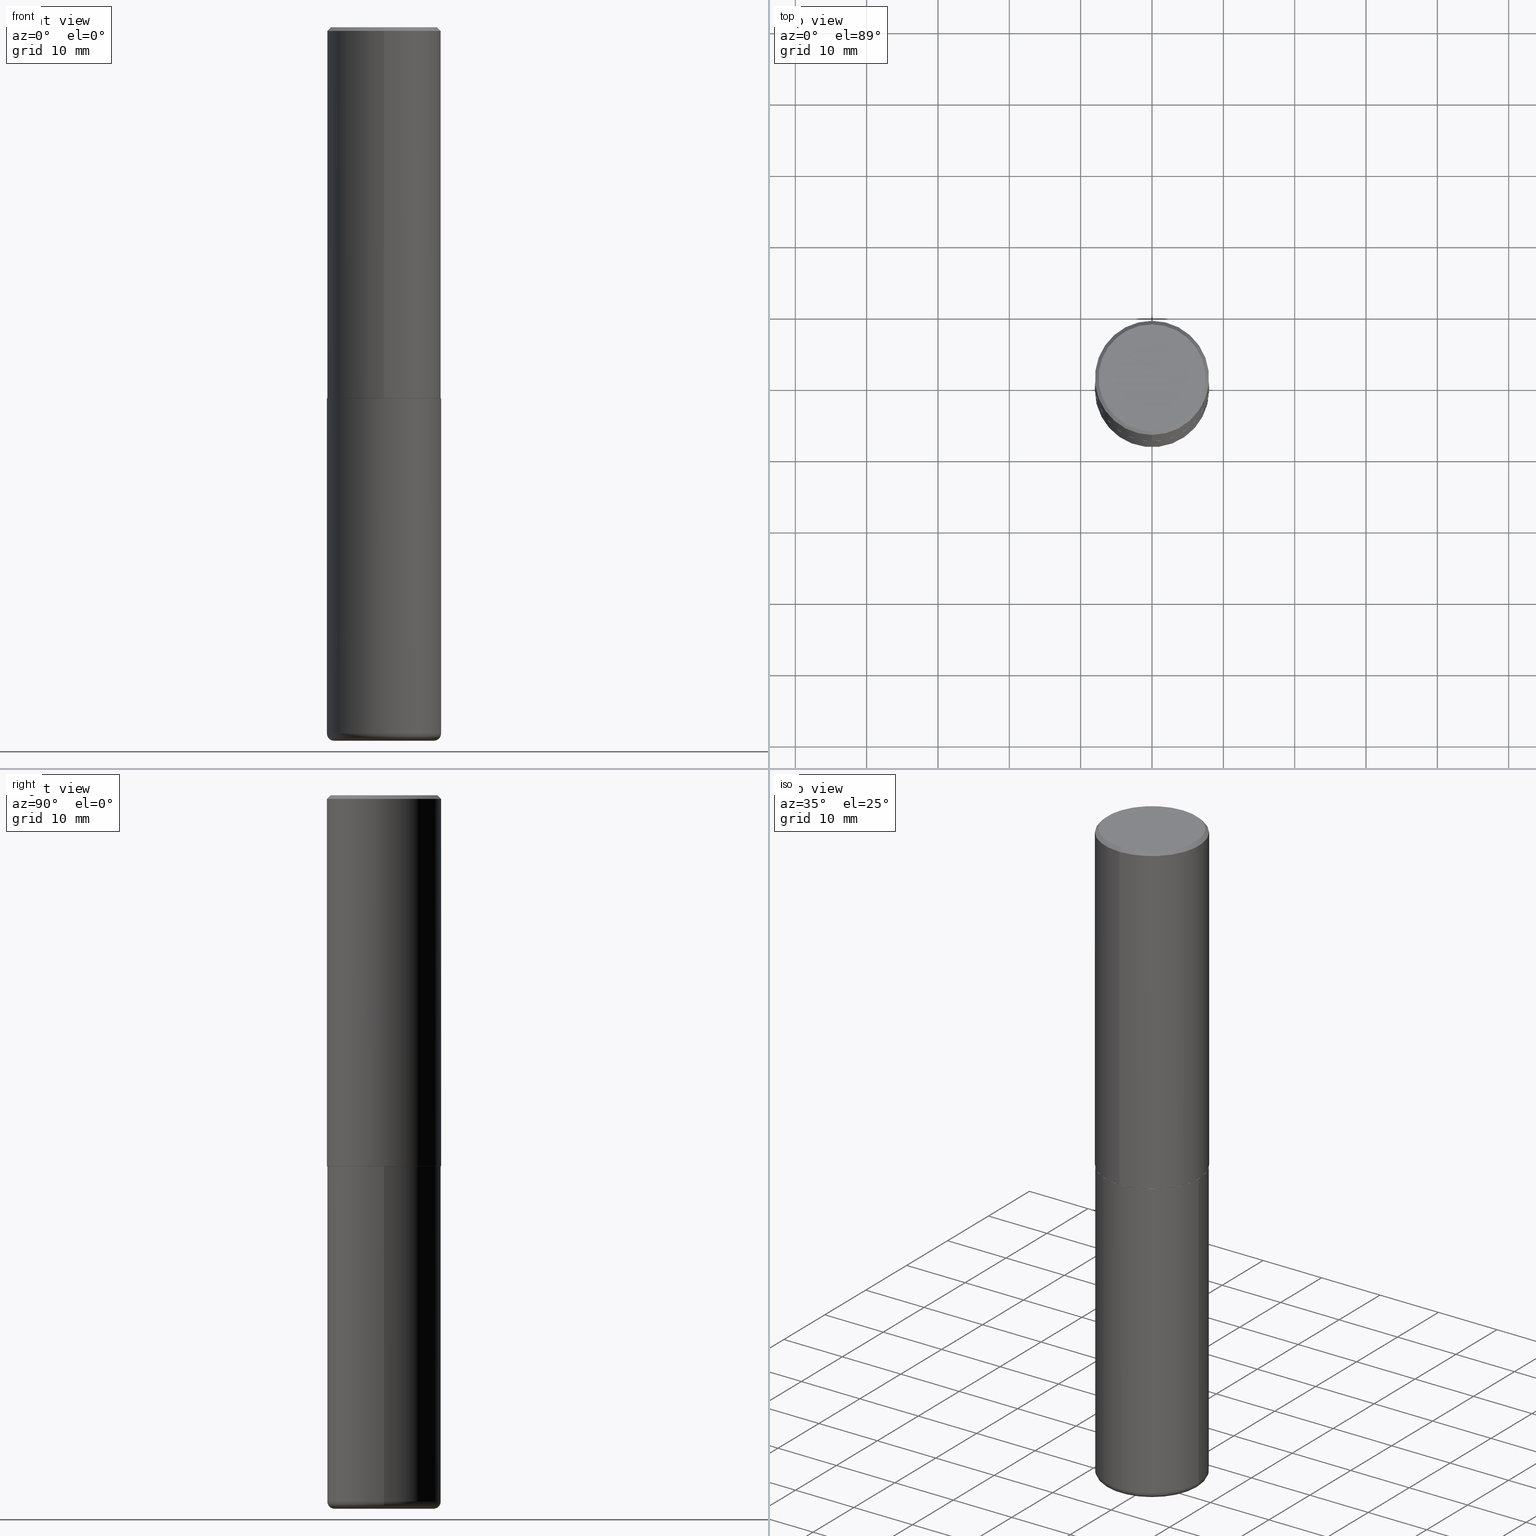
[diagram: canonical four-view strip — front | top / right | iso, engineering-drawing reading convention]
A machine part, canonical four-view strip (front | top / right | iso — engineering-drawing reading convention). The complete STEP part file that produces these views, byte-faithful:
ISO-10303-21;
HEADER;
FILE_DESCRIPTION (( 'STEP AP203' ),
    '1' );
FILE_NAME ('47563.STEP',
    '2024-03-06T11:52:22',
    ( '' ),
    ( '' ),
    'SwSTEP 2.0',
    'SolidWorks 2023',
    '' );
FILE_SCHEMA (( 'CONFIG_CONTROL_DESIGN' ));
ENDSEC;

DATA;
#1 = CARTESIAN_POINT ( 'NONE',  ( 0.3149500000000000077, -1.580768176161233565E-14, -3.897600000000000176 ) ) ;
#2 = PERSON_AND_ORGANIZATION ( #127, #219 ) ;
#3 = CARTESIAN_POINT ( 'NONE',  ( -2.092108864420429609E-15, -0.2949500000000003230, 8.450016163975523199E-16 ) ) ;
#4 = PERSON_AND_ORGANIZATION ( #127, #219 ) ;
#5 = EDGE_CURVE ( 'NONE', #135, #403, #167, .T. ) ;
#6 = CARTESIAN_POINT ( 'NONE',  ( 9.627810689950883669E-29, -1.374596203102546341E-14, -3.937000000000000277 ) ) ;
#7 = AXIS2_PLACEMENT_3D ( 'NONE', #399, #282, #216 ) ;
#8 =( CONVERSION_BASED_UNIT ( 'INCH', #204 ) LENGTH_UNIT ( ) NAMED_UNIT ( #244 ) );
#9 = VECTOR ( 'NONE', #18, 39.37007874015748143 ) ;
#10 = APPROVAL ( #114, 'UNSPECIFIED' ) ;
#11 = DIRECTION ( 'NONE',  ( 2.438088387897960049E-29, -3.491481338843145188E-15, -1.000000000000000000 ) ) ;
#12 = ADVANCED_BREP_SHAPE_REPRESENTATION ( '47563', ( #115, #245, #169 ), #110 ) ;
#13 = CARTESIAN_POINT ( 'NONE',  ( 2.199284095337290660E-15, 0.3149500000000000632, -0.02000000000000116615 ) ) ;
#14 = CARTESIAN_POINT ( 'NONE',  ( -2.199284095337291449E-15, -0.3149500000000002853, 1.098966783218907654E-15 ) ) ;
#15 = ADVANCED_FACE ( 'NONE', ( #412 ), #32, .F. ) ;
#16 = AXIS2_PLACEMENT_3D ( 'NONE', #118, #296, #352 ) ;
#17 = VECTOR ( 'NONE', #130, 39.37007874015748143 ) ;
#18 = DIRECTION ( 'NONE',  ( -4.937700262165222518E-15, -0.7071067811866417196, 0.7071067811864533148 ) ) ;
#19 = APPLICATION_CONTEXT ( 'configuration controlled 3d designs of mechanical parts and assemblies' ) ;
#20 = CARTESIAN_POINT ( 'NONE',  ( 9.531459218987189074E-29, -1.360839766627504420E-14, -3.897600000000000176 ) ) ;
#21 = VERTEX_POINT ( 'NONE', #194 ) ;
#22 = ADVANCED_FACE ( 'NONE', ( #65 ), #295, .T. ) ;
#23 = ORIENTED_EDGE ( 'NONE', *, *, #88, .T. ) ;
#24 = CARTESIAN_POINT ( 'NONE',  ( 4.893931958425293692E-31, -6.978674603707955407E-17, -0.02000000000000006981 ) ) ;
#25 = AXIS2_PLACEMENT_3D ( 'NONE', #185, #93, #156 ) ;
#26 = ORIENTED_EDGE ( 'NONE', *, *, #58, .F. ) ;
#27 = FACE_OUTER_BOUND ( 'NONE', #284, .T. ) ;
#28 = ORIENTED_EDGE ( 'NONE', *, *, #175, .T. ) ;
#29 = ORIENTED_EDGE ( 'NONE', *, *, #318, .F. ) ;
#30 = ADVANCED_FACE ( 'NONE', ( #286 ), #292, .T. ) ;
#31 = AXIS2_PLACEMENT_3D ( 'NONE', #107, #233, #75 ) ;
#32 = PLANE ( 'NONE',  #362 ) ;
#33 = EDGE_LOOP ( 'NONE', ( #373, #54, #99, #409 ) ) ;
#34 = DIRECTION ( 'NONE',  ( 0.000000000000000000, 0.000000000000000000, 1.000000000000000000 ) ) ;
#35 = EDGE_CURVE ( 'NONE', #63, #242, #285, .T. ) ;
#36 = ORIENTED_EDGE ( 'NONE', *, *, #83, .F. ) ;
#37 = PERSON_AND_ORGANIZATION ( #127, #219 ) ;
#38 = AXIS2_PLACEMENT_3D ( 'NONE', #353, #331, #43 ) ;
#39 = TOROIDAL_SURFACE ( 'NONE', #381, 0.2755500000000000171, 0.03940000000000003222 ) ;
#40 = CARTESIAN_POINT ( 'NONE',  ( 4.893931958425293692E-31, -6.978674603707955407E-17, -0.02000000000000006981 ) ) ;
#41 =( LENGTH_UNIT ( ) NAMED_UNIT ( * ) SI_UNIT ( $, .METRE. ) );
#42 = VECTOR ( 'NONE', #230, 39.37007874015748143 ) ;
#43 = DIRECTION ( 'NONE',  ( -6.982962677686265922E-15, -1.000000000000000000, 3.489337301853966019E-15 ) ) ;
#44 = PERSON_AND_ORGANIZATION ( #127, #219 ) ;
#45 = CARTESIAN_POINT ( 'NONE',  ( 0.000000000000000000, 0.000000000000000000, 0.000000000000000000 ) ) ;
#46 = EDGE_CURVE ( 'NONE', #242, #63, #61, .T. ) ;
#47 = DIRECTION ( 'NONE',  ( 6.982962677686264344E-15, 1.000000000000000000, -3.483117034309589160E-15 ) ) ;
#48 = CIRCLE ( 'NONE', #287, 0.3139500000000000068 ) ;
#49 = SHAPE_DEFINITION_REPRESENTATION ( #121, #12 ) ;
#50 = DIRECTION ( 'NONE',  ( 1.000000000000000000, -6.982962677686278543E-15, 0.000000000000000000 ) ) ;
#51 = EDGE_CURVE ( 'NONE', #376, #163, #345, .T. ) ;
#52 = DIRECTION ( 'NONE',  ( -2.445468806185136597E-29, 3.491481338843145583E-15, 1.000000000000000000 ) ) ;
#53 = DIRECTION ( 'NONE',  ( -6.982962677686266711E-15, -1.000000000000000000, 3.480615376543096919E-15 ) ) ;
#54 = ORIENTED_EDGE ( 'NONE', *, *, #51, .F. ) ;
#55 = VECTOR ( 'NONE', #102, 39.37007874015748143 ) ;
#56 = SECURITY_CLASSIFICATION_LEVEL ( 'unclassified' ) ;
#57 = ORIENTED_EDGE ( 'NONE', *, *, #415, .F. ) ;
#58 = EDGE_CURVE ( 'NONE', #376, #182, #201, .T. ) ;
#59 = CARTESIAN_POINT ( 'NONE',  ( 5.009428752644114609E-29, -7.143371324355440401E-15, -2.047200000000000131 ) ) ;
#60 = CARTESIAN_POINT ( 'NONE',  ( 2.059624841783566430E-15, 0.2949500000000003230, -1.121269247573966471E-15 ) ) ;
#61 = CIRCLE ( 'NONE', #387, 0.3149500000000000077 ) ;
#62 = FACE_OUTER_BOUND ( 'NONE', #252, .T. ) ;
#63 = VERTEX_POINT ( 'NONE', #208 ) ;
#64 = ADVANCED_FACE ( 'NONE', ( #385 ), #72, .T. ) ;
#65 = FACE_OUTER_BOUND ( 'NONE', #369, .T. ) ;
#66 = PRODUCT_RELATED_PRODUCT_CATEGORY ( 'detail', '', ( #356 ) ) ;
#67 = ORIENTED_EDGE ( 'NONE', *, *, #344, .T. ) ;
#68 = AXIS2_PLACEMENT_3D ( 'NONE', #24, #251, #374 ) ;
#69 = ORIENTED_EDGE ( 'NONE', *, *, #247, .F. ) ;
#70 = DIRECTION ( 'NONE',  ( -1.000000000000000000, 6.982962677686265922E-15, -4.876176775795935793E-29 ) ) ;
#71 = DIRECTION ( 'NONE',  ( 1.000000000000000000, 0.000000000000000000, 0.000000000000000000 ) ) ;
#72 = CYLINDRICAL_SURFACE ( 'NONE', #38, 0.3149500000000002853 ) ;
#73 = CARTESIAN_POINT ( 'NONE',  ( 0.000000000000000000, 0.000000000000000000, 0.000000000000000000 ) ) ;
#74 = CIRCLE ( 'NONE', #101, 0.3149500000000003408 ) ;
#75 = DIRECTION ( 'NONE',  ( -6.982962677686265922E-15, -1.000000000000000000, 3.489337301853966019E-15 ) ) ;
#76 = APPROVAL_DATE_TIME ( #354, #91 ) ;
#77 = AXIS2_PLACEMENT_3D ( 'NONE', #6, #171, #391 ) ;
#78 = DIRECTION ( 'NONE',  ( 6.982962677686264344E-15, 1.000000000000000000, -3.483117034309589160E-15 ) ) ;
#79 = DIRECTION ( 'NONE',  ( -2.445468806185136877E-29, 3.491481338843145188E-15, 1.000000000000000000 ) ) ;
#80 = DIRECTION ( 'NONE',  ( -6.982962677686266711E-15, -1.000000000000000000, 3.491481338843145583E-15 ) ) ;
#81 = APPROVAL_PERSON_ORGANIZATION ( #267, #164, #144 ) ;
#82 = DATE_AND_TIME ( #86, #371 ) ;
#83 = EDGE_CURVE ( 'NONE', #165, #212, #268, .T. ) ;
#84 = DIRECTION ( 'NONE',  ( -2.446965979212638438E-29, 3.489337301853966019E-15, 1.000000000000000000 ) ) ;
#85 = FACE_OUTER_BOUND ( 'NONE', #384, .T. ) ;
#86 = CALENDAR_DATE ( 2024, 6, 3 ) ;
#87 = ORIENTED_EDGE ( 'NONE', *, *, #5, .F. ) ;
#88 = EDGE_CURVE ( 'NONE', #163, #377, #206, .T. ) ;
#89 = AXIS2_PLACEMENT_3D ( 'NONE', #343, #84, #53 ) ;
#90 = DESIGN_CONTEXT ( 'detailed design', #338, 'design' ) ;
#91 = APPROVAL ( #328, 'UNSPECIFIED' ) ;
#92 = ORIENTED_EDGE ( 'NONE', *, *, #247, .T. ) ;
#93 = DIRECTION ( 'NONE',  ( -2.445468806185136597E-29, 3.491481338843145583E-15, 1.000000000000000000 ) ) ;
#94 = CARTESIAN_POINT ( 'NONE',  ( 2.237854346276437168E-15, 0.3149500000000002853, -1.098966783218907654E-15 ) ) ;
#95 = ORIENTED_EDGE ( 'NONE', *, *, #240, .F. ) ;
#96 = SECURITY_CLASSIFICATION ( '', '', #56 ) ;
#97 = CARTESIAN_POINT ( 'NONE',  ( 5.006363740022212801E-29, -7.147760596879689780E-15, -2.047200000000000575 ) ) ;
#98 = ORIENTED_EDGE ( 'NONE', *, *, #175, .F. ) ;
#99 = ORIENTED_EDGE ( 'NONE', *, *, #58, .T. ) ;
#100 = DIRECTION ( 'NONE',  ( -2.446965979212638158E-29, 3.489337301853966019E-15, 1.000000000000000000 ) ) ;
#101 = AXIS2_PLACEMENT_3D ( 'NONE', #154, #241, #125 ) ;
#102 = DIRECTION ( 'NONE',  ( 5.024295867788748699E-15, 0.7071067811866466046, 0.7071067811864484298 ) ) ;
#103 = CC_DESIGN_DATE_AND_TIME_ASSIGNMENT ( #351, #326, ( #305 ) ) ;
#104 = APPROVAL_DATE_TIME ( #383, #164 ) ;
#105 = ORIENTED_EDGE ( 'NONE', *, *, #395, .F. ) ;
#106 = CARTESIAN_POINT ( 'NONE',  ( 5.009428752644115170E-29, -7.143371324355441979E-15, -2.047200000000000575 ) ) ;
#107 = CARTESIAN_POINT ( 'NONE',  ( 4.506783297642337076E-45, -6.426606338391306016E-31, -1.841784207842761497E-16 ) ) ;
#108 = COORDINATED_UNIVERSAL_TIME_OFFSET ( 5, 0, .BEHIND. ) ;
#109 = AXIS2_PLACEMENT_3D ( 'NONE', #197, #304, #143 ) ;
#110 =( GEOMETRIC_REPRESENTATION_CONTEXT ( 3 ) GLOBAL_UNCERTAINTY_ASSIGNED_CONTEXT ( ( #302 ) ) GLOBAL_UNIT_ASSIGNED_CONTEXT ( ( #8, #146, #142 ) ) REPRESENTATION_CONTEXT ( 'NONE', 'WORKASPACE' ) );
#111 = DIRECTION ( 'NONE',  ( -6.982962677686264344E-15, -1.000000000000000000, 3.483117034309589160E-15 ) ) ;
#112 = CARTESIAN_POINT ( 'NONE',  ( -2.199284095337241750E-15, -0.3149500000000075017, -2.046199999999998909 ) ) ;
#113 = LINE ( 'NONE', #235, #239 ) ;
#114 = APPROVAL_STATUS ( 'not_yet_approved' ) ;
#115 = MANIFOLD_SOLID_BREP ( 'Body-Move/Copy2[1]', #161 ) ;
#116 = CARTESIAN_POINT ( 'NONE',  ( -2.160713844398144151E-15, -0.3149500000000002298, -0.01999999999999896999 ) ) ;
#117 = EDGE_CURVE ( 'NONE', #321, #165, #254, .T. ) ;
#118 = CARTESIAN_POINT ( 'NONE',  ( 5.006981786664901703E-29, -7.139881987053586380E-15, -2.046200000000000241 ) ) ;
#119 = PRODUCT_DEFINITION_FORMATION_WITH_SPECIFIED_SOURCE ( 'ANY', '', #356, .NOT_KNOWN. ) ;
#120 = APPROVAL_DATE_TIME ( #358, #10 ) ;
#121 = PRODUCT_DEFINITION_SHAPE ( 'NONE', 'NONE',  #305 ) ;
#122 = DIRECTION ( 'NONE',  ( -2.445468806185136877E-29, 3.491481338843145188E-15, 1.000000000000000000 ) ) ;
#123 = DATE_TIME_ROLE ( 'classification_date' ) ;
#124 = DIRECTION ( 'NONE',  ( -6.982962677686266711E-15, -1.000000000000000000, 3.480615376543096919E-15 ) ) ;
#125 = DIRECTION ( 'NONE',  ( -6.982962677686265922E-15, -1.000000000000000000, 3.469564049740289220E-15 ) ) ;
#126 = LINE ( 'NONE', #94, #17 ) ;
#127 = PERSON ( 'UNSPECIFIED', 'UNSPECIFIED', 'UNSPECIFIED', ('UNSPECIFIED'), ('UNSPECIFIED'), ('UNSPECIFIED') ) ;
#128 = LINE ( 'NONE', #14, #375 ) ;
#129 = ORIENTED_EDGE ( 'NONE', *, *, #51, .T. ) ;
#130 = DIRECTION ( 'NONE',  ( -2.446965979212638158E-29, 3.489337301853966019E-15, 1.000000000000000000 ) ) ;
#131 = ADVANCED_FACE ( 'NONE', ( #172 ), #413, .T. ) ;
#132 = ORIENTED_EDGE ( 'NONE', *, *, #278, .F. ) ;
#133 = CC_DESIGN_PERSON_AND_ORGANIZATION_ASSIGNMENT ( #214, #393, ( #96 ) ) ;
#134 = CONICAL_SURFACE ( 'NONE', #262, 0.3139500000000000068, 0.7853981633975849475 ) ;
#135 = VERTEX_POINT ( 'NONE', #298 ) ;
#136 = ORIENTED_EDGE ( 'NONE', *, *, #255, .F. ) ;
#137 = CYLINDRICAL_SURFACE ( 'NONE', #281, 0.3149500000000000077 ) ;
#138 = ORIENTED_EDGE ( 'NONE', *, *, #210, .F. ) ;
#139 = CC_DESIGN_APPROVAL ( #164, ( #305 ) ) ;
#140 = CIRCLE ( 'NONE', #16, 0.3149500000000003408 ) ;
#141 = DIRECTION ( 'NONE',  ( 1.000000000000000000, -6.982962677686269866E-15, 4.883557194083113462E-29 ) ) ;
#142 =( NAMED_UNIT ( * ) SI_UNIT ( $, .STERADIAN. ) SOLID_ANGLE_UNIT ( ) );
#143 = DIRECTION ( 'NONE',  ( 1.000000000000000000, -6.982962677686266711E-15, 0.000000000000000000 ) ) ;
#144 = APPROVAL_ROLE ( '' ) ;
#145 = DIRECTION ( 'NONE',  ( -2.446965979212638438E-29, 3.489337301853966019E-15, 1.000000000000000000 ) ) ;
#146 =( NAMED_UNIT ( * ) PLANE_ANGLE_UNIT ( ) SI_UNIT ( $, .RADIAN. ) );
#147 = CIRCLE ( 'NONE', #418, 0.2949500000000003230 ) ;
#148 = AXIS2_PLACEMENT_3D ( 'NONE', #106, #100, #297 ) ;
#149 = CARTESIAN_POINT ( 'NONE',  ( 4.893931958425293692E-31, -6.978674603707955407E-17, -0.02000000000000006981 ) ) ;
#150 = CARTESIAN_POINT ( 'NONE',  ( 4.893931958425293692E-31, -6.978674603707955407E-17, -0.02000000000000006981 ) ) ;
#151 = DIRECTION ( 'NONE',  ( 7.105427357601001859E-15, 1.000000000000000000, -3.491481338843145583E-15 ) ) ;
#152 = DIRECTION ( 'NONE',  ( 1.000000000000000000, -6.982962677686264344E-15, 0.000000000000000000 ) ) ;
#153 = CYLINDRICAL_SURFACE ( 'NONE', #7, 0.3149500000000000077 ) ;
#154 = CARTESIAN_POINT ( 'NONE',  ( 5.006981786664901703E-29, -7.139881987053586380E-15, -2.046200000000000241 ) ) ;
#155 = DIRECTION ( 'NONE',  ( -2.445468806185136597E-29, 3.491481338843145583E-15, 1.000000000000000000 ) ) ;
#156 = DIRECTION ( 'NONE',  ( 1.000000000000000000, -6.982962677686264344E-15, 0.000000000000000000 ) ) ;
#157 = CARTESIAN_POINT ( 'NONE',  ( -0.2755500000000000171, -1.157930242131855792E-14, -3.937000000000000277 ) ) ;
#158 = CC_DESIGN_DATE_AND_TIME_ASSIGNMENT ( #82, #123, ( #96 ) ) ;
#159 = ORIENTED_EDGE ( 'NONE', *, *, #255, .T. ) ;
#160 = EDGE_LOOP ( 'NONE', ( #29, #186 ) ) ;
#161 = CLOSED_SHELL ( 'NONE', ( #312, #289, #15, #402, #22, #30 ) ) ;
#162 = CC_DESIGN_SECURITY_CLASSIFICATION ( #96, ( #119 ) ) ;
#163 = VERTEX_POINT ( 'NONE', #3 ) ;
#164 = APPROVAL ( #388, 'UNSPECIFIED' ) ;
#165 = VERTEX_POINT ( 'NONE', #300 ) ;
#166 = PERSON_AND_ORGANIZATION_ROLE ( 'creator' ) ;
#167 = LINE ( 'NONE', #191, #55 ) ;
#168 = PLANE ( 'NONE',  #148 ) ;
#169 = AXIS2_PLACEMENT_3D ( 'NONE', #73, #34, #71 ) ;
#170 = EDGE_CURVE ( 'NONE', #377, #182, #238, .T. ) ;
#171 = DIRECTION ( 'NONE',  ( -2.445468806185136597E-29, 3.491481338843145583E-15, 1.000000000000000000 ) ) ;
#172 = FACE_OUTER_BOUND ( 'NONE', #225, .T. ) ;
#173 = CALENDAR_DATE ( 2024, 6, 3 ) ;
#174 = DIRECTION ( 'NONE',  ( -6.982962677686265922E-15, -1.000000000000000000, 3.489337301853966019E-15 ) ) ;
#175 = EDGE_CURVE ( 'NONE', #163, #376, #147, .T. ) ;
#176 = DIRECTION ( 'NONE',  ( -1.000000000000000000, 7.105427357601025525E-15, 0.000000000000000000 ) ) ;
#177 = DIRECTION ( 'NONE',  ( -2.446965979212638438E-29, 3.489337301853966019E-15, 1.000000000000000000 ) ) ;
#178 = ORIENTED_EDGE ( 'NONE', *, *, #83, .T. ) ;
#179 = DIRECTION ( 'NONE',  ( -2.446965979212638438E-29, 3.489337301853966019E-15, 1.000000000000000000 ) ) ;
#180 = CC_DESIGN_APPROVAL ( #10, ( #96 ) ) ;
#181 = CALENDAR_DATE ( 2024, 6, 3 ) ;
#182 = VERTEX_POINT ( 'NONE', #13 ) ;
#183 = ORIENTED_EDGE ( 'NONE', *, *, #318, .T. ) ;
#184 = DIRECTION ( 'NONE',  ( -2.446965979212638438E-29, 3.489337301853966019E-15, 1.000000000000000000 ) ) ;
#185 = CARTESIAN_POINT ( 'NONE',  ( 9.531459218987189074E-29, -1.360839766627504420E-14, -3.897600000000000176 ) ) ;
#186 = ORIENTED_EDGE ( 'NONE', *, *, #344, .F. ) ;
#187 = AXIS2_PLACEMENT_3D ( 'NONE', #40, #392, #78 ) ;
#188 = CARTESIAN_POINT ( 'NONE',  ( 2.129454468560428545E-15, 0.2949500000000003230, -1.213358457966104521E-15 ) ) ;
#189 = ORIENTED_EDGE ( 'NONE', *, *, #415, .T. ) ;
#190 = ORIENTED_EDGE ( 'NONE', *, *, #46, .T. ) ;
#191 = CARTESIAN_POINT ( 'NONE',  ( 2.230748918918884280E-15, 0.3139499999999928459, -2.047200000000001463 ) ) ;
#192 = VECTOR ( 'NONE', #122, 39.37007874015748143 ) ;
#193 = ORIENTED_EDGE ( 'NONE', *, *, #368, .T. ) ;
#194 = CARTESIAN_POINT ( 'NONE',  ( -2.192301132659553370E-15, -0.3139500000000071678, -2.047199999999999243 ) ) ;
#195 = DIRECTION ( 'NONE',  ( 1.000000000000000000, -6.982962677686266711E-15, 4.876176775795936353E-29 ) ) ;
#196 = EDGE_CURVE ( 'NONE', #321, #372, #307, .T. ) ;
#197 = CARTESIAN_POINT ( 'NONE',  ( 5.006363740022212801E-29, -7.147760596879689780E-15, -2.047200000000000575 ) ) ;
#198 = APPLICATION_PROTOCOL_DEFINITION ( 'international standard', 'config_control_design', 1994, #19 ) ;
#199 = AXIS2_PLACEMENT_3D ( 'NONE', #45, #389, #174 ) ;
#200 = AXIS2_PLACEMENT_3D ( 'NONE', #60, #342, #276 ) ;
#201 = LINE ( 'NONE', #334, #42 ) ;
#202 = PERSON_AND_ORGANIZATION ( #127, #219 ) ;
#203 = FACE_OUTER_BOUND ( 'NONE', #279, .T. ) ;
#204 = LENGTH_MEASURE_WITH_UNIT ( LENGTH_MEASURE( 0.02539999999999999897 ), #41 );
#205 = ADVANCED_FACE ( 'NONE', ( #271 ), #364, .T. ) ;
#206 = LINE ( 'NONE', #116, #275 ) ;
#207 = CONICAL_SURFACE ( 'NONE', #89, 0.3139500000000000068, 0.7853981633975849475 ) ;
#208 = CARTESIAN_POINT ( 'NONE',  ( -0.3149500000000000077, -8.140224785300930216E-15, -2.047200000000000575 ) ) ;
#209 = CARTESIAN_POINT ( 'NONE',  ( 5.009428752644114609E-29, -7.143371324355440401E-15, -2.047200000000000131 ) ) ;
#210 = EDGE_CURVE ( 'NONE', #406, #403, #140, .T. ) ;
#211 = CARTESIAN_POINT ( 'NONE',  ( 0.3149500000000000077, -9.347044692216979650E-15, -2.047200000000000575 ) ) ;
#212 = VERTEX_POINT ( 'NONE', #1 ) ;
#213 = CC_DESIGN_PERSON_AND_ORGANIZATION_ASSIGNMENT ( #2, #299, ( #356 ) ) ;
#214 = PERSON_AND_ORGANIZATION ( #127, #219 ) ;
#215 = ORIENTED_EDGE ( 'NONE', *, *, #359, .F. ) ;
#216 = DIRECTION ( 'NONE',  ( 1.000000000000000000, -6.982962677686266711E-15, 4.876176775795936353E-29 ) ) ;
#217 = EDGE_LOOP ( 'NONE', ( #190, #350 ) ) ;
#218 = DIRECTION ( 'NONE',  ( -2.446965979212638438E-29, 3.489337301853966019E-15, 1.000000000000000000 ) ) ;
#219 = ORGANIZATION ( 'UNSPECIFIED', 'UNSPECIFIED', '' ) ;
#220 = AXIS2_PLACEMENT_3D ( 'NONE', #337, #80, #50 ) ;
#221 = ORIENTED_EDGE ( 'NONE', *, *, #35, .F. ) ;
#222 = ORIENTED_EDGE ( 'NONE', *, *, #5, .T. ) ;
#223 = ORIENTED_EDGE ( 'NONE', *, *, #272, .F. ) ;
#224 = DIRECTION ( 'NONE',  ( 1.000000000000000000, -6.982962677686268288E-15, 0.000000000000000000 ) ) ;
#225 = EDGE_LOOP ( 'NONE', ( #98, #23, #319, #26 ) ) ;
#226 = CALENDAR_DATE ( 2024, 6, 3 ) ;
#227 = CARTESIAN_POINT ( 'NONE',  ( 9.627810689950883669E-29, -1.374596203102546341E-14, -3.937000000000000277 ) ) ;
#228 = APPLICATION_PROTOCOL_DEFINITION ( 'international standard', 'config_control_design', 1994, #338 ) ;
#229 = CC_DESIGN_PERSON_AND_ORGANIZATION_ASSIGNMENT ( #44, #361, ( #119 ) ) ;
#230 = DIRECTION ( 'NONE',  ( 4.937700262164540154E-15, 0.7071067811865440200, -0.7071067811865511255 ) ) ;
#231 = CALENDAR_DATE ( 2024, 6, 3 ) ;
#232 = CIRCLE ( 'NONE', #68, 0.3149500000000001743 ) ;
#233 = DIRECTION ( 'NONE',  ( -2.446965979212638438E-29, 3.489337301853966019E-15, 1.000000000000000000 ) ) ;
#234 = ADVANCED_FACE ( 'NONE', ( #203 ), #333, .T. ) ;
#235 = CARTESIAN_POINT ( 'NONE',  ( 0.3149500000000000077, -2.199284095337289871E-15, 1.535751875536930130E-29 ) ) ;
#236 = DIRECTION ( 'NONE',  ( -1.000000000000000000, 6.982962677686265922E-15, -4.876176775795935793E-29 ) ) ;
#237 = COORDINATED_UNIVERSAL_TIME_OFFSET ( 5, 0, .BEHIND. ) ;
#238 = CIRCLE ( 'NONE', #320, 0.3149500000000001743 ) ;
#239 = VECTOR ( 'NONE', #79, 39.37007874015748143 ) ;
#240 = EDGE_CURVE ( 'NONE', #212, #242, #113, .T. ) ;
#241 = DIRECTION ( 'NONE',  ( -2.446965979212638438E-29, 3.489337301853966019E-15, 1.000000000000000000 ) ) ;
#242 = VERTEX_POINT ( 'NONE', #211 ) ;
#243 = EDGE_LOOP ( 'NONE', ( #57, #290 ) ) ;
#244 = DIMENSIONAL_EXPONENTS ( 1.000000000000000000, 0.000000000000000000, 0.000000000000000000, 0.000000000000000000, 0.000000000000000000, 0.000000000000000000, 0.000000000000000000 ) ;
#245 = MANIFOLD_SOLID_BREP ( 'Body-Move/Copy2[2]', #407 ) ;
#246 = AXIS2_PLACEMENT_3D ( 'NONE', #417, #293, #224 ) ;
#247 = EDGE_CURVE ( 'NONE', #406, #377, #128, .T. ) ;
#248 = ORIENTED_EDGE ( 'NONE', *, *, #46, .F. ) ;
#249 = CARTESIAN_POINT ( 'NONE',  ( -2.160713844398144151E-15, -0.3149500000000002298, -0.01999999999999896999 ) ) ;
#250 = ORIENTED_EDGE ( 'NONE', *, *, #278, .T. ) ;
#251 = DIRECTION ( 'NONE',  ( -2.446965979212638438E-29, 3.489337301853966019E-15, 1.000000000000000000 ) ) ;
#252 = EDGE_LOOP ( 'NONE', ( #189, #325, #132, #36 ) ) ;
#253 = LOCAL_TIME ( 6, 52, 22.00000000000000000, #339 ) ;
#254 = CIRCLE ( 'NONE', #77, 0.2755500000000000171 ) ;
#255 = EDGE_CURVE ( 'NONE', #403, #406, #74, .T. ) ;
#256 = ORIENTED_EDGE ( 'NONE', *, *, #303, .T. ) ;
#257 = ORIENTED_EDGE ( 'NONE', *, *, #210, .T. ) ;
#258 = CARTESIAN_POINT ( 'NONE',  ( 0.000000000000000000, 0.000000000000000000, 0.000000000000000000 ) ) ;
#259 = ADVANCED_FACE ( 'NONE', ( #365 ), #207, .T. ) ;
#260 = ORIENTED_EDGE ( 'NONE', *, *, #240, .T. ) ;
#261 = COORDINATED_UNIVERSAL_TIME_OFFSET ( 5, 0, .BEHIND. ) ;
#262 = AXIS2_PLACEMENT_3D ( 'NONE', #317, #179, #283 ) ;
#263 = EDGE_LOOP ( 'NONE', ( #257, #347, #346, #69 ) ) ;
#264 = CARTESIAN_POINT ( 'NONE',  ( 2.237854346276462412E-15, 0.3149499999999931799, -2.046200000000001129 ) ) ;
#265 = DIRECTION ( 'NONE',  ( 1.000000000000000000, -6.982962677686266711E-15, 0.000000000000000000 ) ) ;
#266 = APPROVAL_ROLE ( '' ) ;
#267 = PERSON_AND_ORGANIZATION ( #127, #219 ) ;
#268 = CIRCLE ( 'NONE', #220, 0.03939999999999999752 ) ;
#269 = DIRECTION ( 'NONE',  ( -2.445468806185136597E-29, 3.491481338843145583E-15, 1.000000000000000000 ) ) ;
#270 = DIRECTION ( 'NONE',  ( -6.982962677686265922E-15, -1.000000000000000000, 3.489337301853966019E-15 ) ) ;
#271 = FACE_OUTER_BOUND ( 'NONE', #33, .T. ) ;
#272 = EDGE_CURVE ( 'NONE', #372, #212, #329, .T. ) ;
#273 = AXIS2_PLACEMENT_3D ( 'NONE', #150, #357, #47 ) ;
#274 = APPROVAL_PERSON_ORGANIZATION ( #37, #91, #266 ) ;
#275 = VECTOR ( 'NONE', #355, 39.37007874015748854 ) ;
#276 = DIRECTION ( 'NONE',  ( 6.982962677686265922E-15, 1.000000000000000000, -3.489337301853966019E-15 ) ) ;
#277 = LINE ( 'NONE', #367, #9 ) ;
#278 = EDGE_CURVE ( 'NONE', #212, #372, #414, .T. ) ;
#279 = EDGE_LOOP ( 'NONE', ( #215, #159, #92, #105 ) ) ;
#280 = LINE ( 'NONE', #400, #192 ) ;
#281 = AXIS2_PLACEMENT_3D ( 'NONE', #258, #396, #195 ) ;
#282 = DIRECTION ( 'NONE',  ( -2.445468806185136597E-29, 3.491481338843145583E-15, 1.000000000000000000 ) ) ;
#283 = DIRECTION ( 'NONE',  ( -6.982962677686266711E-15, -1.000000000000000000, 3.480615376543096919E-15 ) ) ;
#284 = EDGE_LOOP ( 'NONE', ( #250, #193, #248, #95 ) ) ;
#285 = CIRCLE ( 'NONE', #109, 0.3149500000000000077 ) ;
#286 = FACE_OUTER_BOUND ( 'NONE', #243, .T. ) ;
#287 = AXIS2_PLACEMENT_3D ( 'NONE', #59, #218, #404 ) ;
#288 = CARTESIAN_POINT ( 'NONE',  ( 9.531459218987189074E-29, -1.360839766627504420E-14, -3.897600000000000176 ) ) ;
#289 = ADVANCED_FACE ( 'NONE', ( #62 ), #39, .T. ) ;
#290 = ORIENTED_EDGE ( 'NONE', *, *, #117, .F. ) ;
#291 = COORDINATED_UNIVERSAL_TIME_OFFSET ( 5, 0, .BEHIND. ) ;
#292 = PLANE ( 'NONE',  #330 ) ;
#293 = DIRECTION ( 'NONE',  ( -2.445468806185136597E-29, 3.491481338843145583E-15, 1.000000000000000000 ) ) ;
#294 = CIRCLE ( 'NONE', #401, 0.3139500000000000068 ) ;
#295 = TOROIDAL_SURFACE ( 'NONE', #308, 0.2755500000000000171, 0.03940000000000003222 ) ;
#296 = DIRECTION ( 'NONE',  ( -2.446965979212638438E-29, 3.489337301853966019E-15, 1.000000000000000000 ) ) ;
#297 = DIRECTION ( 'NONE',  ( -6.982962677686265922E-15, -1.000000000000000000, 3.489337301853966019E-15 ) ) ;
#298 = CARTESIAN_POINT ( 'NONE',  ( 2.234301632597685968E-15, 0.3139499999999928459, -2.047200000000001463 ) ) ;
#299 = PERSON_AND_ORGANIZATION_ROLE ( 'design_owner' ) ;
#300 = CARTESIAN_POINT ( 'NONE',  ( 0.2755500000000000171, -1.567011739686191643E-14, -3.937000000000000277 ) ) ;
#301 = LOCAL_TIME ( 6, 52, 22.00000000000000000, #261 ) ;
#302 = UNCERTAINTY_MEASURE_WITH_UNIT (LENGTH_MEASURE( 1.000000000000000082E-05 ), #8, 'distance_accuracy_value', 'NONE');
#303 = EDGE_CURVE ( 'NONE', #21, #406, #277, .T. ) ;
#304 = DIRECTION ( 'NONE',  ( -2.445468806185136597E-29, 3.491481338843145583E-15, 1.000000000000000000 ) ) ;
#305 = PRODUCT_DEFINITION ( 'UNKNOWN', '', #119, #90 ) ;
#306 = APPROVAL_ROLE ( '' ) ;
#307 = CIRCLE ( 'NONE', #394, 0.03939999999999999752 ) ;
#308 = AXIS2_PLACEMENT_3D ( 'NONE', #288, #416, #141 ) ;
#309 = EDGE_LOOP ( 'NONE', ( #379, #314, #260, #221 ) ) ;
#310 = DIRECTION ( 'NONE',  ( 1.000000000000000000, -6.982962677686269866E-15, 4.883557194083113462E-29 ) ) ;
#311 = DIRECTION ( 'NONE',  ( -2.446965979212638158E-29, 3.489337301853966019E-15, 1.000000000000000000 ) ) ;
#312 = ADVANCED_FACE ( 'NONE', ( #27 ), #153, .T. ) ;
#313 = PLANE ( 'NONE',  #200 ) ;
#314 = ORIENTED_EDGE ( 'NONE', *, *, #272, .T. ) ;
#315 = CARTESIAN_POINT ( 'NONE',  ( -0.3149500000000000077, -1.137054331999860664E-14, -3.897600000000000176 ) ) ;
#316 = LOCAL_TIME ( 6, 52, 22.00000000000000000, #291 ) ;
#317 = CARTESIAN_POINT ( 'NONE',  ( 5.009428752644114609E-29, -7.143371324355440401E-15, -2.047200000000000131 ) ) ;
#318 = EDGE_CURVE ( 'NONE', #21, #135, #294, .T. ) ;
#319 = ORIENTED_EDGE ( 'NONE', *, *, #170, .T. ) ;
#320 = AXIS2_PLACEMENT_3D ( 'NONE', #149, #145, #111 ) ;
#321 = VERTEX_POINT ( 'NONE', #157 ) ;
#322 = ADVANCED_FACE ( 'NONE', ( #370 ), #313, .F. ) ;
#323 = ORIENTED_EDGE ( 'NONE', *, *, #196, .F. ) ;
#324 = MECHANICAL_CONTEXT ( 'NONE', #19, 'mechanical' ) ;
#325 = ORIENTED_EDGE ( 'NONE', *, *, #196, .T. ) ;
#326 = DATE_TIME_ROLE ( 'creation_date' ) ;
#327 = CARTESIAN_POINT ( 'NONE',  ( -0.2755500000000000171, -1.165049715788808683E-14, -3.897600000000000176 ) ) ;
#328 = APPROVAL_STATUS ( 'not_yet_approved' ) ;
#329 = CIRCLE ( 'NONE', #408, 0.3149499999999999522 ) ;
#330 = AXIS2_PLACEMENT_3D ( 'NONE', #227, #11, #236 ) ;
#331 = DIRECTION ( 'NONE',  ( -2.446965979212638438E-29, 3.489337301853966019E-15, 1.000000000000000000 ) ) ;
#332 = PERSON_AND_ORGANIZATION_ROLE ( 'creator' ) ;
#333 = CYLINDRICAL_SURFACE ( 'NONE', #199, 0.3149500000000002853 ) ;
#334 = CARTESIAN_POINT ( 'NONE',  ( 2.199284095337290660E-15, 0.3149500000000000632, -0.02000000000000116615 ) ) ;
#335 = PERSON_AND_ORGANIZATION ( #127, #219 ) ;
#336 = CIRCLE ( 'NONE', #246, 0.2755500000000000171 ) ;
#337 = CARTESIAN_POINT ( 'NONE',  ( 0.2755500000000000171, -1.553255303211149406E-14, -3.897600000000000176 ) ) ;
#338 = APPLICATION_CONTEXT ( 'configuration controlled 3d designs of mechanical parts and assemblies' ) ;
#339 = COORDINATED_UNIVERSAL_TIME_OFFSET ( 5, 0, .BEHIND. ) ;
#340 = CARTESIAN_POINT ( 'NONE',  ( 9.531459218987189074E-29, -1.360839766627504420E-14, -3.897600000000000176 ) ) ;
#341 = APPROVAL_PERSON_ORGANIZATION ( #335, #10, #306 ) ;
#342 = DIRECTION ( 'NONE',  ( 2.446965979212638158E-29, -3.489337301853966019E-15, -1.000000000000000000 ) ) ;
#343 = CARTESIAN_POINT ( 'NONE',  ( 5.009428752644114609E-29, -7.143371324355440401E-15, -2.047200000000000131 ) ) ;
#344 = EDGE_CURVE ( 'NONE', #135, #21, #48, .T. ) ;
#345 = CIRCLE ( 'NONE', #31, 0.2949500000000003230 ) ;
#346 = ORIENTED_EDGE ( 'NONE', *, *, #170, .F. ) ;
#347 = ORIENTED_EDGE ( 'NONE', *, *, #359, .T. ) ;
#348 = EDGE_LOOP ( 'NONE', ( #183, #222, #138, #397 ) ) ;
#349 = LOCAL_TIME ( 6, 52, 22.00000000000000000, #108 ) ;
#350 = ORIENTED_EDGE ( 'NONE', *, *, #35, .T. ) ;
#351 = DATE_AND_TIME ( #226, #301 ) ;
#352 = DIRECTION ( 'NONE',  ( -6.982962677686265922E-15, -1.000000000000000000, 3.469564049740289220E-15 ) ) ;
#353 = CARTESIAN_POINT ( 'NONE',  ( 0.000000000000000000, 0.000000000000000000, 0.000000000000000000 ) ) ;
#354 = DATE_AND_TIME ( #231, #349 ) ;
#355 = DIRECTION ( 'NONE',  ( -4.851104656540955597E-15, -0.7071067811865487940, -0.7071067811865461294 ) ) ;
#356 = PRODUCT ( '47563', '47563', '', ( #324 ) ) ;
#357 = DIRECTION ( 'NONE',  ( 2.446965979212638438E-29, -3.489337301853966019E-15, -1.000000000000000000 ) ) ;
#358 = DATE_AND_TIME ( #181, #253 ) ;
#359 = EDGE_CURVE ( 'NONE', #403, #182, #126, .T. ) ;
#360 = CARTESIAN_POINT ( 'NONE',  ( 5.006363740022212801E-29, -7.147760596879689780E-15, -2.047200000000000575 ) ) ;
#361 = PERSON_AND_ORGANIZATION_ROLE ( 'design_supplier' ) ;
#362 = AXIS2_PLACEMENT_3D ( 'NONE', #97, #382, #70 ) ;
#363 = CC_DESIGN_APPROVAL ( #91, ( #119 ) ) ;
#364 = CONICAL_SURFACE ( 'NONE', #187, 0.3149500000000001743, 0.7853981633974467247 ) ;
#365 = FACE_OUTER_BOUND ( 'NONE', #348, .T. ) ;
#366 = ORIENTED_EDGE ( 'NONE', *, *, #117, .T. ) ;
#367 = CARTESIAN_POINT ( 'NONE',  ( -2.192301132659553370E-15, -0.3139500000000071678, -2.047199999999999243 ) ) ;
#368 = EDGE_CURVE ( 'NONE', #372, #63, #280, .T. ) ;
#369 = EDGE_LOOP ( 'NONE', ( #323, #366, #178, #223 ) ) ;
#370 = FACE_OUTER_BOUND ( 'NONE', #410, .T. ) ;
#371 = LOCAL_TIME ( 6, 52, 22.00000000000000000, #237 ) ;
#372 = VERTEX_POINT ( 'NONE', #315 ) ;
#373 = ORIENTED_EDGE ( 'NONE', *, *, #88, .F. ) ;
#374 = DIRECTION ( 'NONE',  ( -6.982962677686264344E-15, -1.000000000000000000, 3.483117034309589160E-15 ) ) ;
#375 = VECTOR ( 'NONE', #311, 39.37007874015748143 ) ;
#376 = VERTEX_POINT ( 'NONE', #188 ) ;
#377 = VERTEX_POINT ( 'NONE', #249 ) ;
#378 = ADVANCED_FACE ( 'NONE', ( #85 ), #134, .T. ) ;
#379 = ORIENTED_EDGE ( 'NONE', *, *, #368, .F. ) ;
#380 = FACE_OUTER_BOUND ( 'NONE', #160, .T. ) ;
#381 = AXIS2_PLACEMENT_3D ( 'NONE', #340, #52, #310 ) ;
#382 = DIRECTION ( 'NONE',  ( 2.438088387897960049E-29, -3.491481338843145188E-15, -1.000000000000000000 ) ) ;
#383 = DATE_AND_TIME ( #173, #316 ) ;
#384 = EDGE_LOOP ( 'NONE', ( #87, #67, #256, #136 ) ) ;
#385 = FACE_OUTER_BOUND ( 'NONE', #263, .T. ) ;
#386 = CARTESIAN_POINT ( 'NONE',  ( 4.506783297642337076E-45, -6.426606338391306016E-31, -1.841784207842761497E-16 ) ) ;
#387 = AXIS2_PLACEMENT_3D ( 'NONE', #360, #269, #265 ) ;
#388 = APPROVAL_STATUS ( 'not_yet_approved' ) ;
#389 = DIRECTION ( 'NONE',  ( -2.446965979212638438E-29, 3.489337301853966019E-15, 1.000000000000000000 ) ) ;
#390 = CC_DESIGN_PERSON_AND_ORGANIZATION_ASSIGNMENT ( #4, #166, ( #305 ) ) ;
#391 = DIRECTION ( 'NONE',  ( 1.000000000000000000, -6.982962677686268288E-15, 0.000000000000000000 ) ) ;
#392 = DIRECTION ( 'NONE',  ( 2.446965979212638438E-29, -3.489337301853966019E-15, -1.000000000000000000 ) ) ;
#393 = PERSON_AND_ORGANIZATION_ROLE ( 'classification_officer' ) ;
#394 = AXIS2_PLACEMENT_3D ( 'NONE', #327, #151, #176 ) ;
#395 = EDGE_CURVE ( 'NONE', #182, #377, #232, .T. ) ;
#396 = DIRECTION ( 'NONE',  ( -2.445468806185136597E-29, 3.491481338843145583E-15, 1.000000000000000000 ) ) ;
#397 = ORIENTED_EDGE ( 'NONE', *, *, #303, .F. ) ;
#398 = CC_DESIGN_PERSON_AND_ORGANIZATION_ASSIGNMENT ( #202, #332, ( #119 ) ) ;
#399 = CARTESIAN_POINT ( 'NONE',  ( 0.000000000000000000, 0.000000000000000000, 0.000000000000000000 ) ) ;
#400 = CARTESIAN_POINT ( 'NONE',  ( -0.3149500000000000077, 2.237854346276435590E-15, -1.549218606675782676E-29 ) ) ;
#401 = AXIS2_PLACEMENT_3D ( 'NONE', #209, #184, #124 ) ;
#402 = ADVANCED_FACE ( 'NONE', ( #405 ), #137, .T. ) ;
#403 = VERTEX_POINT ( 'NONE', #264 ) ;
#404 = DIRECTION ( 'NONE',  ( -6.982962677686266711E-15, -1.000000000000000000, 3.480615376543096919E-15 ) ) ;
#405 = FACE_OUTER_BOUND ( 'NONE', #309, .T. ) ;
#406 = VERTEX_POINT ( 'NONE', #112 ) ;
#407 = CLOSED_SHELL ( 'NONE', ( #259, #64, #131, #205, #234, #378, #411, #322 ) ) ;
#408 = AXIS2_PLACEMENT_3D ( 'NONE', #20, #155, #152 ) ;
#409 = ORIENTED_EDGE ( 'NONE', *, *, #395, .T. ) ;
#410 = EDGE_LOOP ( 'NONE', ( #129, #28 ) ) ;
#411 = ADVANCED_FACE ( 'NONE', ( #380 ), #168, .F. ) ;
#412 = FACE_OUTER_BOUND ( 'NONE', #217, .T. ) ;
#413 = CONICAL_SURFACE ( 'NONE', #273, 0.3149500000000001743, 0.7853981633974467247 ) ;
#414 = CIRCLE ( 'NONE', #25, 0.3149499999999999522 ) ;
#415 = EDGE_CURVE ( 'NONE', #165, #321, #336, .T. ) ;
#416 = DIRECTION ( 'NONE',  ( -2.445468806185136597E-29, 3.491481338843145583E-15, 1.000000000000000000 ) ) ;
#417 = CARTESIAN_POINT ( 'NONE',  ( 9.627810689950883669E-29, -1.374596203102546341E-14, -3.937000000000000277 ) ) ;
#418 = AXIS2_PLACEMENT_3D ( 'NONE', #386, #177, #270 ) ;
ENDSEC;
END-ISO-10303-21;
